MODEL slx_fb84a31f8e36
KIND model
CONFIG AbsTol = auto
CONFIG EnableMultiTasking = off
CONFIG FixedStep = 0.01
CONFIG MaxStep = auto
CONFIG MinStep = auto
CONFIG RelTol = 1e-3
CONFIG SampleTimeConstraint = Unconstrained
CONFIG Solver = FixedStepAuto
CONFIG SolverName = FixedStepAuto
CONFIG StartTime = 0.0
CONFIG StopTime = 50
BLOCK [Reference] Blank Message  REF=robotlib/Blank Message
  Ports = [0, 1]
  SourceBlock = robotlib/Blank Message
  SourceLibraryInfo = This block requires Robotics System Toolbox
  SourceProductBaseCode = RO
  SourceProductName = Robotics System Toolbox
  SourceType = ROS Blank Message
BLOCK [BusAssignment] Bus Assignment
  AssignedSignals = CoordinateFrame,TypeMask,Velocity.X,Velocity.Y
  Ports = [5, 1]
BLOCK [Constant] Constant
  OutDataTypeStr = uint16
  Value = 3527
BLOCK [Constant] Constant1
  OutDataTypeStr = uint8
  Value = 8
BLOCK [Display] Display
  Decimation = 1
  Ports = [1]
BLOCK [Display] Display1
  Decimation = 1
  Ports = [1]
BLOCK [Scope] Err
  IOType = viewer
  NumInputPorts = 1
  Ports = []
  ScopeSpecificationString = Simulink.scopes.TimeScopeBlockCfg('CurrentConfiguration', extmgr.ConfigurationSet(extmgr.Configuration('Core','General UI',true),extmgr.Configuration('Core','Source UI',true),extmgr.Configuration('Sources','WiredSimulink',true,'DataLoggingVariableName','ScopeData1'),extmgr.Configuration('Visuals','Time Domain',true,'SerializedDisplays',{struct('MinYLimReal','-0.57684','MaxYLimReal','0.363','YLabel...<+1479ch>
BLOCK [Display] ErrX
  Decimation = 1
  Ports = [1]
BLOCK [Display] ErrY
  Decimation = 1
  Ports = [1]
BLOCK [Gain] Gain
  Gain = -1
  OutDataTypeStr = Inherit: Inherit via internal rule
  ParamDataTypeStr = Inherit: Inherit via internal rule
  SaturateOnIntegerOverflow = off
BLOCK [Reference] Publish  REF=robotlib/Publish
  Ports = [1]
  SourceBlock = robotlib/Publish
  SourceLibraryInfo = This block requires Robotics System Toolbox
  SourceProductBaseCode = RO
  SourceProductName = Robotics System Toolbox
  SourceType = ROS Publish
BLOCK [Scope] SAT(u) VS u(t)
  IOType = viewer
  NumInputPorts = 1
  Ports = []
  ScopeSpecificationString = Simulink.scopes.TimeScopeBlockCfg('CurrentConfiguration', extmgr.ConfigurationSet(extmgr.Configuration('Core','General UI',true),extmgr.Configuration('Core','Source UI',true),extmgr.Configuration('Sources','WiredSimulink',true,'DataLoggingVariableName','ScopeData1'),extmgr.Configuration('Visuals','Time Domain',true,'SerializedDisplays',{struct('MinYLimReal','-100','MaxYLimReal','100','YLabelReal',...<+1569ch>
BLOCK [Scope] Scope
  NumInputPorts = 2
  Ports = [2]
  ScopeSpecificationString = Simulink.scopes.TimeScopeBlockCfg('CurrentConfiguration', extmgr.ConfigurationSet(extmgr.Configuration('Core','General UI',true),extmgr.Configuration('Core','Source UI',true),extmgr.Configuration('Sources','WiredSimulink',true),extmgr.Configuration('Visuals','Time Domain',true,'SerializedDisplays',{struct('MinYLimReal','-215.82251','MaxYLimReal','145.64369','YLabelReal','','MinYLimMag',' 0.00000',...<+1436ch>
BLOCK [Reference] Subscribe  REF=robotlib/Subscribe
  Ports = [0, 2]
  SourceBlock = robotlib/Subscribe
  SourceLibraryInfo = This block requires Robotics System Toolbox
  SourceProductBaseCode = RO
  SourceProductName = Robotics System Toolbox
  SourceType = ROS Subscribe
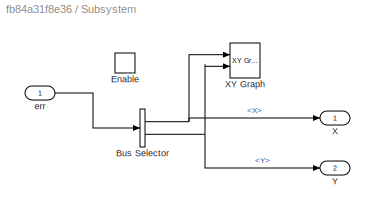
BLOCK [SubSystem] Subsystem
  Ports = [1, 2, 1]
  RequestExecContextInheritance = off
  Variant = off
BLOCK [BusSelector] Subsystem/Bus Selector
  OutputAsBus = off
  OutputSignals = X,Y
  Ports = [1, 2]
BLOCK [EnablePort] Subsystem/Enable
  Ports = []
BLOCK [Outport] Subsystem/X
  IconDisplay = Port number
BLOCK [Reference] Subsystem/XY Graph  REF=simulink/Sinks/XY Graph
  Ports = [2]
  SourceBlock = simulink/Sinks/XY Graph
  SourceProductBaseCode = SL
  SourceProductName = Simulink
  SourceType = XY scope.
BLOCK [Outport] Subsystem/Y
  IconDisplay = Port number
  Port = 2
BLOCK [Inport] Subsystem/err
  IconDisplay = Port number
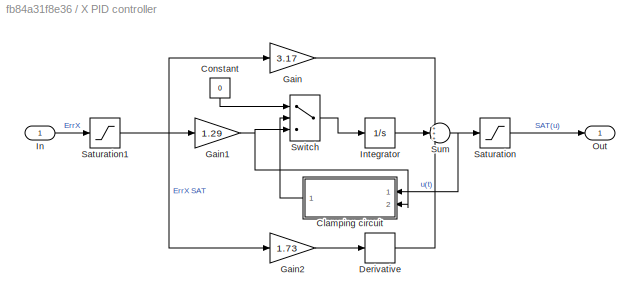
BLOCK [SubSystem] X PID controller
  Ports = [1, 1]
  RequestExecContextInheritance = off
  Variant = off
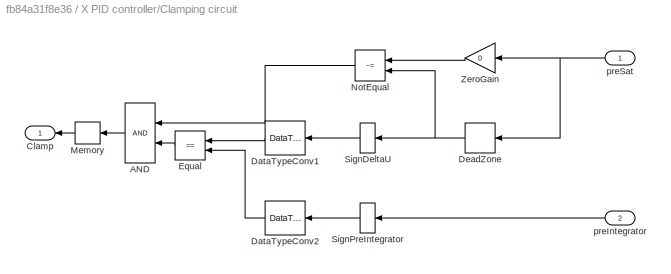
BLOCK [SubSystem] X PID controller/Clamping circuit
  Ports = [2, 1]
  RequestExecContextInheritance = off
  Variant = off
BLOCK [Logic] X PID controller/Clamping circuit/AND
  DisableCoverage = on
  Ports = [2, 1]
BLOCK [Outport] X PID controller/Clamping circuit/Clamp
  DisableCoverage = on
  IconDisplay = Port number
BLOCK [DataTypeConversion] X PID controller/Clamping circuit/DataTypeConv1
  DisableCoverage = on
  LockScale = on
  OutDataTypeStr = int8
BLOCK [DataTypeConversion] X PID controller/Clamping circuit/DataTypeConv2
  DisableCoverage = on
  LockScale = on
  OutDataTypeStr = int8
BLOCK [DeadZone] X PID controller/Clamping circuit/DeadZone
  DisableCoverage = on
  LowerValue = -0.3
  UpperValue = 0.3
BLOCK [RelationalOperator] X PID controller/Clamping circuit/Equal
  DisableCoverage = on
  Operator = ==
  Ports = [2, 1]
BLOCK [Memory] X PID controller/Clamping circuit/Memory
  DisableCoverage = on
BLOCK [RelationalOperator] X PID controller/Clamping circuit/NotEqual
  DisableCoverage = on
  Operator = ~=
  Ports = [2, 1]
BLOCK [Signum] X PID controller/Clamping circuit/SignDeltaU
  DisableCoverage = on
BLOCK [Signum] X PID controller/Clamping circuit/SignPreIntegrator
  DisableCoverage = on
BLOCK [Gain] X PID controller/Clamping circuit/ZeroGain
  DisableCoverage = on
  Gain = 0
BLOCK [Inport] X PID controller/Clamping circuit/preIntegrator
  DisableCoverage = on
  IconDisplay = Port number
  Port = 2
BLOCK [Inport] X PID controller/Clamping circuit/preSat
  DisableCoverage = on
  IconDisplay = Port number
BLOCK [Constant] X PID controller/Constant
  DisableCoverage = on
  OutDataTypeStr = Inherit: Inherit via back propagation
  PreserveConstantTs = on
  Value = 0
BLOCK [Derivative] X PID controller/Derivative
BLOCK [Gain] X PID controller/Gain
  Gain = 3.17
  OutDataTypeStr = Inherit: Inherit via internal rule
  ParamDataTypeStr = Inherit: Inherit via internal rule
  SaturateOnIntegerOverflow = off
BLOCK [Gain] X PID controller/Gain1
  Gain = 1.29
  OutDataTypeStr = Inherit: Inherit via internal rule
  ParamDataTypeStr = Inherit: Inherit via internal rule
  SaturateOnIntegerOverflow = off
BLOCK [Gain] X PID controller/Gain2
  Gain = 1.73
  OutDataTypeStr = Inherit: Inherit via internal rule
  ParamDataTypeStr = Inherit: Inherit via internal rule
  SaturateOnIntegerOverflow = off
BLOCK [Inport] X PID controller/In
  IconDisplay = Port number
BLOCK [Integrator] X PID controller/Integrator
  Ports = [1, 1]
BLOCK [Outport] X PID controller/Out
  IconDisplay = Port number
BLOCK [Saturate] X PID controller/Saturation
  InputPortMap = u0
  LowerLimit = -0.3
  Ports = [1, 1]
  UpperLimit = 0.3
BLOCK [Saturate] X PID controller/Saturation1
  InputPortMap = u0
  LowerLimit = -200
  Ports = [1, 1]
  UpperLimit = 200
BLOCK [Sum] X PID controller/Sum
  IconShape = round
  InputSameDT = off
  Inputs = +++
  OutDataTypeStr = Inherit: Inherit via internal rule
  Ports = [3, 1]
  SaturateOnIntegerOverflow = off
BLOCK [Switch] X PID controller/Switch
  Criteria = u2 > Threshold
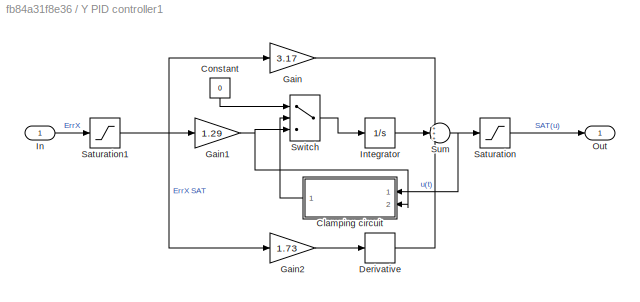
BLOCK [SubSystem] Y PID controller1
  Ports = [1, 1]
  RequestExecContextInheritance = off
  Variant = off
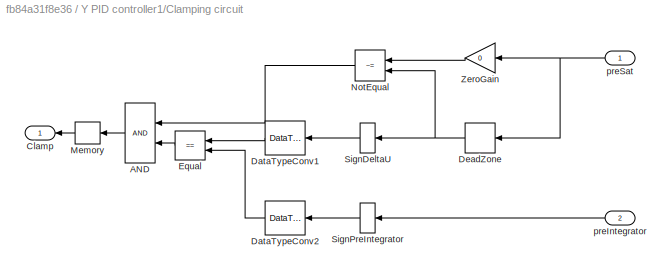
BLOCK [SubSystem] Y PID controller1/Clamping circuit
  Ports = [2, 1]
  RequestExecContextInheritance = off
  Variant = off
BLOCK [Logic] Y PID controller1/Clamping circuit/AND
  DisableCoverage = on
  Ports = [2, 1]
BLOCK [Outport] Y PID controller1/Clamping circuit/Clamp
  DisableCoverage = on
  IconDisplay = Port number
BLOCK [DataTypeConversion] Y PID controller1/Clamping circuit/DataTypeConv1
  DisableCoverage = on
  LockScale = on
  OutDataTypeStr = int8
BLOCK [DataTypeConversion] Y PID controller1/Clamping circuit/DataTypeConv2
  DisableCoverage = on
  LockScale = on
  OutDataTypeStr = int8
BLOCK [DeadZone] Y PID controller1/Clamping circuit/DeadZone
  DisableCoverage = on
  LowerValue = -0.3
  UpperValue = 0.3
BLOCK [RelationalOperator] Y PID controller1/Clamping circuit/Equal
  DisableCoverage = on
  Operator = ==
  Ports = [2, 1]
BLOCK [Memory] Y PID controller1/Clamping circuit/Memory
  DisableCoverage = on
BLOCK [RelationalOperator] Y PID controller1/Clamping circuit/NotEqual
  DisableCoverage = on
  Operator = ~=
  Ports = [2, 1]
BLOCK [Signum] Y PID controller1/Clamping circuit/SignDeltaU
  DisableCoverage = on
BLOCK [Signum] Y PID controller1/Clamping circuit/SignPreIntegrator
  DisableCoverage = on
BLOCK [Gain] Y PID controller1/Clamping circuit/ZeroGain
  DisableCoverage = on
  Gain = 0
BLOCK [Inport] Y PID controller1/Clamping circuit/preIntegrator
  DisableCoverage = on
  IconDisplay = Port number
  Port = 2
BLOCK [Inport] Y PID controller1/Clamping circuit/preSat
  DisableCoverage = on
  IconDisplay = Port number
BLOCK [Constant] Y PID controller1/Constant
  DisableCoverage = on
  OutDataTypeStr = Inherit: Inherit via back propagation
  PreserveConstantTs = on
  Value = 0
BLOCK [Derivative] Y PID controller1/Derivative
BLOCK [Gain] Y PID controller1/Gain
  Gain = 3.17
  OutDataTypeStr = Inherit: Inherit via internal rule
  ParamDataTypeStr = Inherit: Inherit via internal rule
  SaturateOnIntegerOverflow = off
BLOCK [Gain] Y PID controller1/Gain1
  Gain = 1.29
  OutDataTypeStr = Inherit: Inherit via internal rule
  ParamDataTypeStr = Inherit: Inherit via internal rule
  SaturateOnIntegerOverflow = off
BLOCK [Gain] Y PID controller1/Gain2
  Gain = 1.73
  OutDataTypeStr = Inherit: Inherit via internal rule
  ParamDataTypeStr = Inherit: Inherit via internal rule
  SaturateOnIntegerOverflow = off
BLOCK [Inport] Y PID controller1/In
  IconDisplay = Port number
BLOCK [Integrator] Y PID controller1/Integrator
  Ports = [1, 1]
BLOCK [Outport] Y PID controller1/Out
  IconDisplay = Port number
BLOCK [Saturate] Y PID controller1/Saturation
  InputPortMap = u0
  LowerLimit = -0.3
  Ports = [1, 1]
  UpperLimit = 0.3
BLOCK [Saturate] Y PID controller1/Saturation1
  InputPortMap = u0
  LowerLimit = -0.3
  Ports = [1, 1]
  UpperLimit = 0.3
BLOCK [Sum] Y PID controller1/Sum
  IconShape = round
  InputSameDT = off
  Inputs = +++
  OutDataTypeStr = Inherit: Inherit via internal rule
  Ports = [3, 1]
  SaturateOnIntegerOverflow = off
BLOCK [Switch] Y PID controller1/Switch
  Criteria = u2 > Threshold
BLOCK [ZeroOrderHold] Zero-Order Hold
  SampleTime = -1
BLOCK [ZeroOrderHold] Zero-Order Hold1
  SampleTime = -1
ANNOTATION (root): Bo Shang: <email> 2017-Dec-5
ANNOTATION (root): IOPID with clamping anti-windup
ANNOTATION (root): iopid_clamping
LINE Blank Message:1 -> Bus Assignment:1
LINE Bus Assignment:1 -> Publish:1
LINE Constant1:1 -> Bus Assignment:2
LINE Constant:1 -> Bus Assignment:3
LINE Gain:1 -> Zero-Order Hold:1
LINE Subscribe:1 -> Subsystem:enable
LINE Subscribe:2 -> Subsystem:1
NET Subsystem/Bus Selector:1 -> Subsystem/X:1, Subsystem/XY Graph:1
NET Subsystem/Bus Selector:2 -> Subsystem/XY Graph:2, Subsystem/Y:1
LINE Subsystem/err:1 -> Subsystem/Bus Selector:1
LINE Subsystem:1 -> Gain:1
LINE Subsystem:2 -> Zero-Order Hold1:1
LINE X PID controller/Clamping circuit/AND:1 -> X PID controller/Clamping circuit/Memory:1
LINE X PID controller/Clamping circuit/DataTypeConv1:1 -> X PID controller/Clamping circuit/Equal:1
LINE X PID controller/Clamping circuit/DataTypeConv2:1 -> X PID controller/Clamping circuit/Equal:2
NET X PID controller/Clamping circuit/DeadZone:1 -> X PID controller/Clamping circuit/NotEqual:2, X PID controller/Clamping circuit/SignDeltaU:1
LINE X PID controller/Clamping circuit/Equal:1 -> X PID controller/Clamping circuit/AND:2
LINE X PID controller/Clamping circuit/Memory:1 -> X PID controller/Clamping circuit/Clamp:1
LINE X PID controller/Clamping circuit/NotEqual:1 -> X PID controller/Clamping circuit/AND:1
LINE X PID controller/Clamping circuit/SignDeltaU:1 -> X PID controller/Clamping circuit/DataTypeConv1:1
LINE X PID controller/Clamping circuit/SignPreIntegrator:1 -> X PID controller/Clamping circuit/DataTypeConv2:1
LINE X PID controller/Clamping circuit/ZeroGain:1 -> X PID controller/Clamping circuit/NotEqual:1
LINE X PID controller/Clamping circuit/preIntegrator:1 -> X PID controller/Clamping circuit/SignPreIntegrator:1
NET X PID controller/Clamping circuit/preSat:1 -> X PID controller/Clamping circuit/DeadZone:1, X PID controller/Clamping circuit/ZeroGain:1
LINE X PID controller/Clamping circuit:1 -> X PID controller/Switch:2
LINE X PID controller/Constant:1 -> X PID controller/Switch:1
LINE X PID controller/Derivative:1 -> X PID controller/Sum:3
NET X PID controller/Gain1:1 -> X PID controller/Clamping circuit:2, X PID controller/Switch:3
LINE X PID controller/Gain2:1 -> X PID controller/Derivative:1
LINE X PID controller/Gain:1 -> X PID controller/Sum:1
LINE X PID controller/In:1 -> X PID controller/Saturation1:1
LINE X PID controller/Integrator:1 -> X PID controller/Sum:2
NET X PID controller/Saturation1:1 -> X PID controller/Gain1:1, X PID controller/Gain2:1, X PID controller/Gain:1
LINE X PID controller/Saturation:1 -> X PID controller/Out:1
NET X PID controller/Sum:1 -> X PID controller/Clamping circuit:1, X PID controller/Saturation:1
LINE X PID controller/Switch:1 -> X PID controller/Integrator:1
NET X PID controller:1 -> Bus Assignment:4, ErrX:1, Scope:1
LINE Y PID controller1/Clamping circuit/AND:1 -> Y PID controller1/Clamping circuit/Memory:1
LINE Y PID controller1/Clamping circuit/DataTypeConv1:1 -> Y PID controller1/Clamping circuit/Equal:1
LINE Y PID controller1/Clamping circuit/DataTypeConv2:1 -> Y PID controller1/Clamping circuit/Equal:2
NET Y PID controller1/Clamping circuit/DeadZone:1 -> Y PID controller1/Clamping circuit/NotEqual:2, Y PID controller1/Clamping circuit/SignDeltaU:1
LINE Y PID controller1/Clamping circuit/Equal:1 -> Y PID controller1/Clamping circuit/AND:2
LINE Y PID controller1/Clamping circuit/Memory:1 -> Y PID controller1/Clamping circuit/Clamp:1
LINE Y PID controller1/Clamping circuit/NotEqual:1 -> Y PID controller1/Clamping circuit/AND:1
LINE Y PID controller1/Clamping circuit/SignDeltaU:1 -> Y PID controller1/Clamping circuit/DataTypeConv1:1
LINE Y PID controller1/Clamping circuit/SignPreIntegrator:1 -> Y PID controller1/Clamping circuit/DataTypeConv2:1
LINE Y PID controller1/Clamping circuit/ZeroGain:1 -> Y PID controller1/Clamping circuit/NotEqual:1
LINE Y PID controller1/Clamping circuit/preIntegrator:1 -> Y PID controller1/Clamping circuit/SignPreIntegrator:1
NET Y PID controller1/Clamping circuit/preSat:1 -> Y PID controller1/Clamping circuit/DeadZone:1, Y PID controller1/Clamping circuit/ZeroGain:1
LINE Y PID controller1/Clamping circuit:1 -> Y PID controller1/Switch:2
LINE Y PID controller1/Constant:1 -> Y PID controller1/Switch:1
LINE Y PID controller1/Derivative:1 -> Y PID controller1/Sum:3
NET Y PID controller1/Gain1:1 -> Y PID controller1/Clamping circuit:2, Y PID controller1/Switch:3
LINE Y PID controller1/Gain2:1 -> Y PID controller1/Derivative:1
LINE Y PID controller1/Gain:1 -> Y PID controller1/Sum:1
LINE Y PID controller1/In:1 -> Y PID controller1/Saturation1:1
LINE Y PID controller1/Integrator:1 -> Y PID controller1/Sum:2
NET Y PID controller1/Saturation1:1 -> Y PID controller1/Gain1:1, Y PID controller1/Gain2:1, Y PID controller1/Gain:1
LINE Y PID controller1/Saturation:1 -> Y PID controller1/Out:1
NET Y PID controller1/Sum:1 -> Y PID controller1/Clamping circuit:1, Y PID controller1/Saturation:1
LINE Y PID controller1/Switch:1 -> Y PID controller1/Integrator:1
NET Y PID controller1:1 -> Bus Assignment:5, ErrY:1
NET Zero-Order Hold1:1 -> Display1:1, Y PID controller1:1
NET Zero-Order Hold:1 -> Display:1, Scope:2, X PID controller:1
note: NET lines group one-source signal fan-out (src -> all destinations, sorted); 1:1 wires keep LINE
